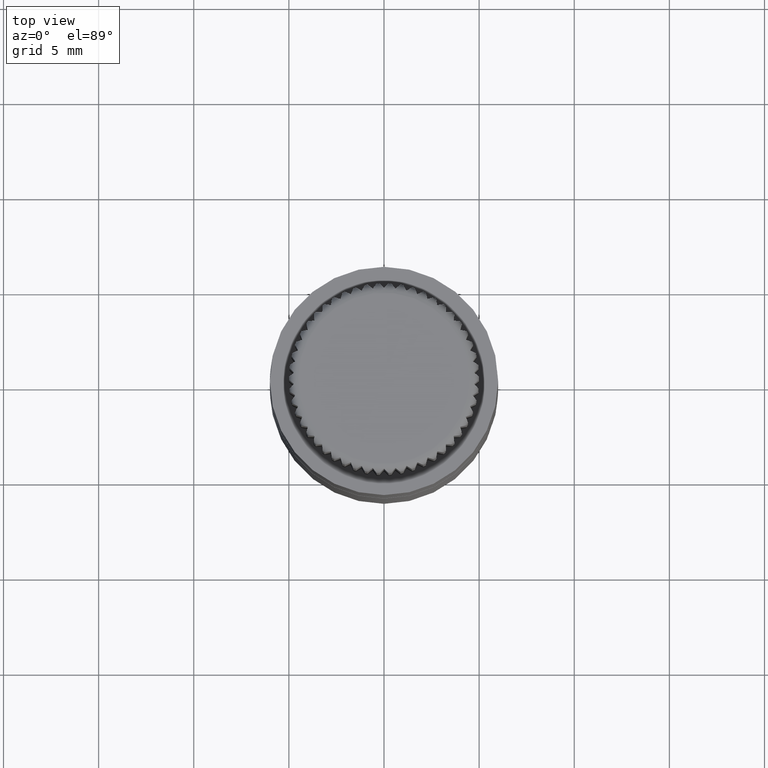
[diagram: clean part render]
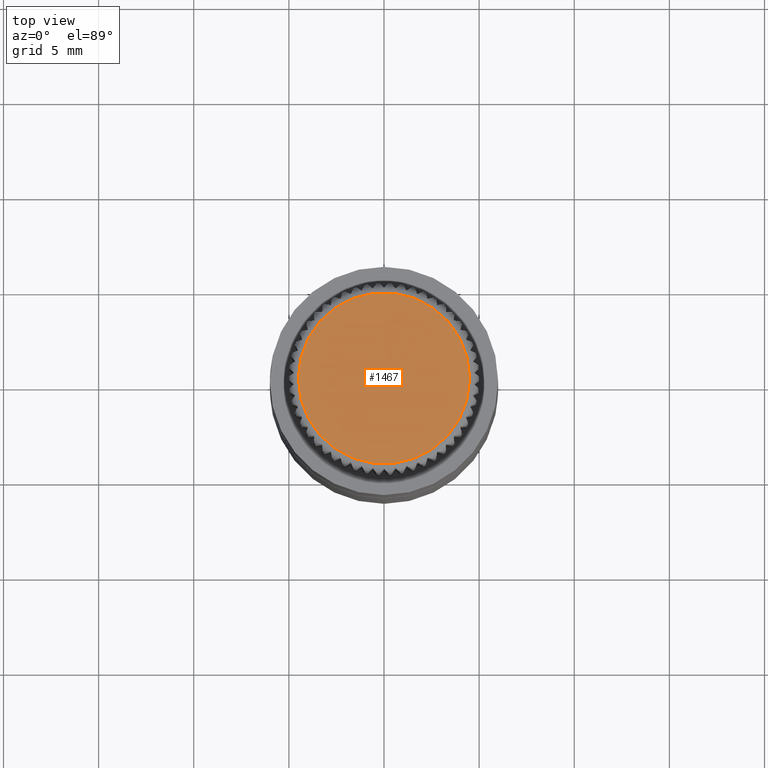
[diagram: same view with one face highlighted and labeled with its STEP entity id]
A machine part, top view. The second image highlights one B-rep face of the part: STEP entity #1467.
In plain terms, the highlighted planar face has unit normal (-0, 0, -1).
Its self-contained STEP definition (entity closure, byte-faithful):
#53 = AXIS2_PLACEMENT_3D ( 'NONE', #4810, #6422, #2938 ) ;
#735 = VERTEX_POINT ( 'NONE', #6714 ) ;
#828 = AXIS2_PLACEMENT_3D ( 'NONE', #2103, #10776, #5636 ) ;
#1272 = CIRCLE ( 'NONE', #828, 4.500000000000016900 ) ;
#1467 = ADVANCED_FACE ( 'NONE', ( #10717 ), #3796, .F. ) ;
#2003 = CARTESIAN_POINT ( 'NONE',  ( 3.469446951953614200E-018, -9.052242572170705400E-033, 34.49999999999999300 ) ) ;
#2008 = CARTESIAN_POINT ( 'NONE',  ( -4.500000000000016900, -1.249976684658536100E-015, 34.49999999999999300 ) ) ;
#2103 = CARTESIAN_POINT ( 'NONE',  ( 3.469446951953614200E-018, -9.052242572170705400E-033, 34.49999999999999300 ) ) ;
#2938 = DIRECTION ( 'NONE',  ( -1.000000000000000000, -2.777725965907847600E-016, 4.336808689942016800E-019 ) ) ;
#2939 = EDGE_CURVE ( 'NONE', #735, #5087, #10706, .T. ) ;
#3796 = PLANE ( 'NONE',  #53 ) ;
#4577 = DIRECTION ( 'NONE',  ( 4.336808689942016800E-019, -1.131530321521338700E-033, 1.000000000000000000 ) ) ;
#4810 = CARTESIAN_POINT ( 'NONE',  ( 2.385244779465244700E-018, 5.000000000000000000, 34.49999999999999300 ) ) ;
#5051 = ORIENTED_EDGE ( 'NONE', *, *, #2939, .T. ) ;
#5087 = VERTEX_POINT ( 'NONE', #2008 ) ;
#5636 = DIRECTION ( 'NONE',  ( -1.000000000000000000, -2.777725965907847600E-016, 0.0000000000000000000 ) ) ;
#6235 = DIRECTION ( 'NONE',  ( -1.000000000000000000, -2.777725965907847600E-016, 0.0000000000000000000 ) ) ;
#6422 = DIRECTION ( 'NONE',  ( -4.336808689942016800E-019, 1.131530321521338700E-033, -1.000000000000000000 ) ) ;
#6668 = EDGE_LOOP ( 'NONE', ( #9938, #5051 ) ) ;
#6714 = CARTESIAN_POINT ( 'NONE',  ( 4.499999999999999100, 1.901127063401221400E-015, 34.49999999999999300 ) ) ;
#8686 = AXIS2_PLACEMENT_3D ( 'NONE', #2003, #4577, #6235 ) ;
#9529 = EDGE_CURVE ( 'NONE', #5087, #735, #1272, .T. ) ;
#9938 = ORIENTED_EDGE ( 'NONE', *, *, #9529, .T. ) ;
#10706 = CIRCLE ( 'NONE', #8686, 4.500000000000016900 ) ;
#10717 = FACE_OUTER_BOUND ( 'NONE', #6668, .T. ) ;
#10776 = DIRECTION ( 'NONE',  ( 4.336808689942016800E-019, -1.131530321521338700E-033, 1.000000000000000000 ) ) ;